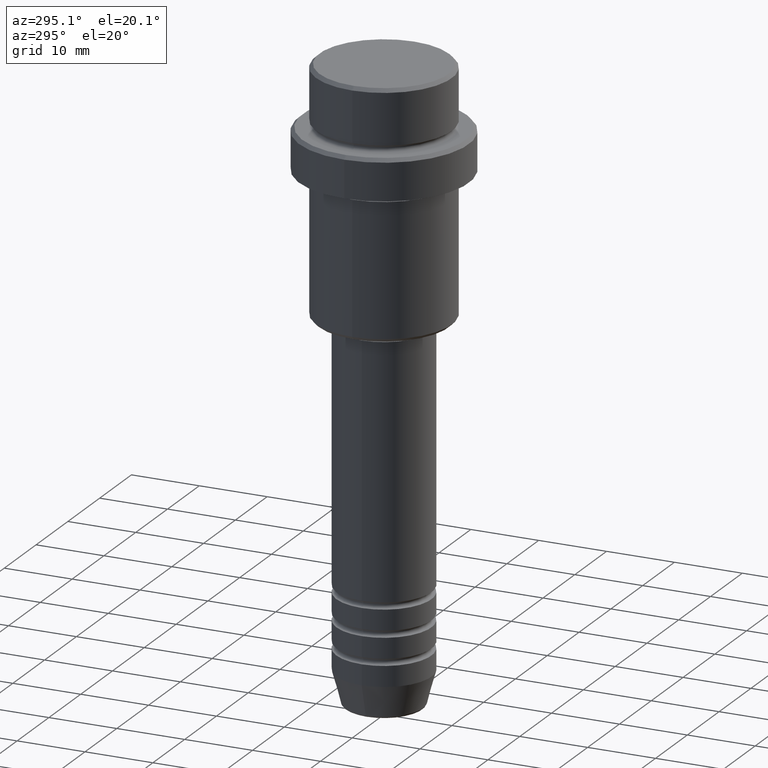
[diagram: clean part render]
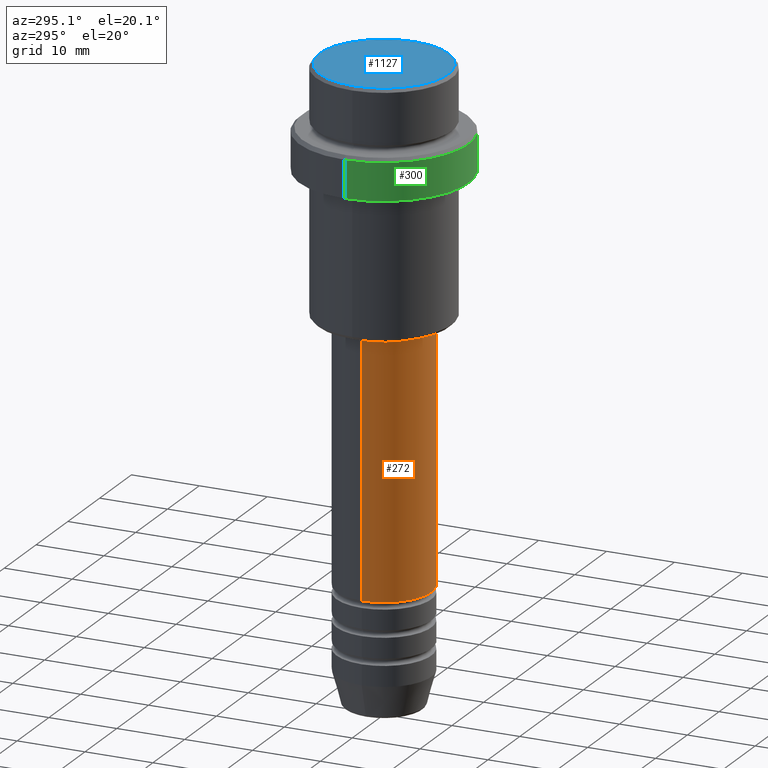
[diagram: same view with three faces highlighted in distinct colors, each labeled with its STEP entity id]
A machine part, auxiliary view with three faces highlighted in distinct colors.
Their STEP definitions:

[orange] entity #272 — the highlighted cylindrical surface (partial cylindrical patch) has radius 7 mm, axis along (-0, -0, 1).
#78 = EDGE_CURVE ( 'NONE', #1156, #888, #553, .T. ) ;
#90 = VERTEX_POINT ( 'NONE', #339 ) ;
#91 = CYLINDRICAL_SURFACE ( 'NONE', #655, 7.000000000000000000 ) ;
#164 = EDGE_CURVE ( 'NONE', #90, #1156, #1017, .T. ) ;
#222 = VECTOR ( 'NONE', #1101, 1000.000000000000000 ) ;
#272 = ADVANCED_FACE ( 'NONE', ( #1072 ), #91, .T. ) ;
#313 = CIRCLE ( 'NONE', #390, 7.000000000000000000 ) ;
#319 = ORIENTED_EDGE ( 'NONE', *, *, #78, .F. ) ;
#321 = EDGE_CURVE ( 'NONE', #372, #888, #885, .T. ) ;
#339 = CARTESIAN_POINT ( 'NONE',  ( -7.000000000000000000, 8.572527594031473190E-16, -73.99999999999987210 ) ) ;
#345 = ORIENTED_EDGE ( 'NONE', *, *, #1274, .T. ) ;
#358 = DIRECTION ( 'NONE',  ( -0.000000000000000000, -0.000000000000000000, 1.000000000000000000 ) ) ;
#372 = VERTEX_POINT ( 'NONE', #842 ) ;
#390 = AXIS2_PLACEMENT_3D ( 'NONE', #397, #540, #831 ) ;
#397 = CARTESIAN_POINT ( 'NONE',  ( 0.000000000000000000, 0.000000000000000000, -73.99999999999987210 ) ) ;
#416 = DIRECTION ( 'NONE',  ( 1.000000000000000000, 0.000000000000000000, 0.000000000000000000 ) ) ;
#540 = DIRECTION ( 'NONE',  ( -0.000000000000000000, -0.000000000000000000, 1.000000000000000000 ) ) ;
#553 = CIRCLE ( 'NONE', #1168, 7.000000000000000000 ) ;
#655 = AXIS2_PLACEMENT_3D ( 'NONE', #1397, #845, #857 ) ;
#726 = VECTOR ( 'NONE', #358, 1000.000000000000000 ) ;
#781 = CARTESIAN_POINT ( 'NONE',  ( 7.000000000000000000, 0.000000000000000000, 0.000000000000000000 ) ) ;
#784 = EDGE_LOOP ( 'NONE', ( #1327, #345, #1302, #319 ) ) ;
#831 = DIRECTION ( 'NONE',  ( 1.000000000000000000, 0.000000000000000000, 0.000000000000000000 ) ) ;
#842 = CARTESIAN_POINT ( 'NONE',  ( 7.000000000000000000, 0.000000000000000000, -73.99999999999987210 ) ) ;
#845 = DIRECTION ( 'NONE',  ( -0.000000000000000000, -0.000000000000000000, 1.000000000000000000 ) ) ;
#847 = CARTESIAN_POINT ( 'NONE',  ( 0.000000000000000000, 0.000000000000000000, -37.00000000000000000 ) ) ;
#857 = DIRECTION ( 'NONE',  ( 1.000000000000000000, 0.000000000000000000, 0.000000000000000000 ) ) ;
#878 = CARTESIAN_POINT ( 'NONE',  ( -7.000000000000000000, 8.572527594031473190E-16, -37.00000000000000000 ) ) ;
#885 = LINE ( 'NONE', #781, #222 ) ;
#888 = VERTEX_POINT ( 'NONE', #1163 ) ;
#1017 = LINE ( 'NONE', #1332, #726 ) ;
#1064 = DIRECTION ( 'NONE',  ( -0.000000000000000000, -0.000000000000000000, 1.000000000000000000 ) ) ;
#1072 = FACE_OUTER_BOUND ( 'NONE', #784, .T. ) ;
#1101 = DIRECTION ( 'NONE',  ( -0.000000000000000000, -0.000000000000000000, 1.000000000000000000 ) ) ;
#1156 = VERTEX_POINT ( 'NONE', #878 ) ;
#1163 = CARTESIAN_POINT ( 'NONE',  ( 7.000000000000000000, 0.000000000000000000, -37.00000000000000000 ) ) ;
#1168 = AXIS2_PLACEMENT_3D ( 'NONE', #847, #1064, #416 ) ;
#1274 = EDGE_CURVE ( 'NONE', #90, #372, #313, .T. ) ;
#1302 = ORIENTED_EDGE ( 'NONE', *, *, #321, .T. ) ;
#1327 = ORIENTED_EDGE ( 'NONE', *, *, #164, .F. ) ;
#1332 = CARTESIAN_POINT ( 'NONE',  ( -7.000000000000000000, 8.572527594031473190E-16, 0.000000000000000000 ) ) ;
#1397 = CARTESIAN_POINT ( 'NONE',  ( 0.000000000000000000, 0.000000000000000000, 0.000000000000000000 ) ) ;

[blue] entity #1127 — the highlighted planar face has unit normal (0, -0, 1).
#28 = EDGE_CURVE ( 'NONE', #855, #813, #931, .T. ) ;
#37 = CARTESIAN_POINT ( 'NONE',  ( 0.000000000000000000, 0.000000000000000000, 0.000000000000000000 ) ) ;
#113 = DIRECTION ( 'NONE',  ( -0.000000000000000000, -0.000000000000000000, 1.000000000000000000 ) ) ;
#151 = DIRECTION ( 'NONE',  ( -0.000000000000000000, -0.000000000000000000, 1.000000000000000000 ) ) ;
#184 = CARTESIAN_POINT ( 'NONE',  ( 9.499999999999994671, 1.194030629168669075E-15, 0.000000000000000000 ) ) ;
#366 = CARTESIAN_POINT ( 'NONE',  ( 0.000000000000000000, 0.000000000000000000, 0.000000000000000000 ) ) ;
#403 = ORIENTED_EDGE ( 'NONE', *, *, #1129, .T. ) ;
#472 = DIRECTION ( 'NONE',  ( 0.000000000000000000, -0.000000000000000000, 1.000000000000000000 ) ) ;
#494 = PLANE ( 'NONE',  #1032 ) ;
#550 = EDGE_LOOP ( 'NONE', ( #403, #594 ) ) ;
#590 = DIRECTION ( 'NONE',  ( 1.000000000000000000, 0.000000000000000000, 0.000000000000000000 ) ) ;
#594 = ORIENTED_EDGE ( 'NONE', *, *, #28, .T. ) ;
#604 = FACE_OUTER_BOUND ( 'NONE', #550, .T. ) ;
#813 = VERTEX_POINT ( 'NONE', #966 ) ;
#855 = VERTEX_POINT ( 'NONE', #184 ) ;
#909 = DIRECTION ( 'NONE',  ( 1.000000000000000000, 0.000000000000000000, 0.000000000000000000 ) ) ;
#914 = DIRECTION ( 'NONE',  ( 1.000000000000000000, 0.000000000000000000, 0.000000000000000000 ) ) ;
#931 = CIRCLE ( 'NONE', #1063, 9.499999999999994671 ) ;
#940 = CIRCLE ( 'NONE', #1069, 9.499999999999994671 ) ;
#966 = CARTESIAN_POINT ( 'NONE',  ( -9.499999999999994671, 0.000000000000000000, 0.000000000000000000 ) ) ;
#1032 = AXIS2_PLACEMENT_3D ( 'NONE', #37, #472, #914 ) ;
#1063 = AXIS2_PLACEMENT_3D ( 'NONE', #1093, #113, #909 ) ;
#1069 = AXIS2_PLACEMENT_3D ( 'NONE', #366, #151, #590 ) ;
#1093 = CARTESIAN_POINT ( 'NONE',  ( 0.000000000000000000, 0.000000000000000000, 0.000000000000000000 ) ) ;
#1127 = ADVANCED_FACE ( 'NONE', ( #604 ), #494, .T. ) ;
#1129 = EDGE_CURVE ( 'NONE', #813, #855, #940, .T. ) ;

[green] entity #300 — the highlighted cylindrical surface (partial cylindrical patch) has radius 12.5 mm, axis along (-0, -0, 1).
#15 = DIRECTION ( 'NONE',  ( 1.000000000000000000, 0.000000000000000000, 0.000000000000000000 ) ) ;
#27 = CARTESIAN_POINT ( 'NONE',  ( 12.50000000000000000, 0.000000000000000000, -9.500000000000007105 ) ) ;
#59 = VERTEX_POINT ( 'NONE', #969 ) ;
#121 = EDGE_CURVE ( 'NONE', #953, #308, #611, .T. ) ;
#145 = DIRECTION ( 'NONE',  ( 1.000000000000000000, 0.000000000000000000, 0.000000000000000000 ) ) ;
#180 = ORIENTED_EDGE ( 'NONE', *, *, #929, .F. ) ;
#233 = CARTESIAN_POINT ( 'NONE',  ( -12.50000000000000000, 1.530808498934191521E-15, 0.000000000000000000 ) ) ;
#236 = DIRECTION ( 'NONE',  ( 0.000000000000000000, 0.000000000000000000, -1.000000000000000000 ) ) ;
#240 = DIRECTION ( 'NONE',  ( -0.000000000000000000, -0.000000000000000000, 1.000000000000000000 ) ) ;
#284 = CARTESIAN_POINT ( 'NONE',  ( 12.50000000000000000, 0.000000000000000000, 0.000000000000000000 ) ) ;
#300 = ADVANCED_FACE ( 'NONE', ( #1096 ), #437, .T. ) ;
#308 = VERTEX_POINT ( 'NONE', #1388 ) ;
#323 = CARTESIAN_POINT ( 'NONE',  ( 0.000000000000000000, 0.000000000000000000, 0.000000000000000000 ) ) ;
#357 = CARTESIAN_POINT ( 'NONE',  ( 12.50000000000000000, 0.000000000000000000, -15.00000000000000178 ) ) ;
#380 = DIRECTION ( 'NONE',  ( -0.000000000000000000, -0.000000000000000000, 1.000000000000000000 ) ) ;
#437 = CYLINDRICAL_SURFACE ( 'NONE', #955, 12.50000000000000000 ) ;
#450 = DIRECTION ( 'NONE',  ( -0.000000000000000000, -0.000000000000000000, 1.000000000000000000 ) ) ;
#455 = ORIENTED_EDGE ( 'NONE', *, *, #1048, .T. ) ;
#458 = DIRECTION ( 'NONE',  ( 1.000000000000000000, 0.000000000000000000, 0.000000000000000000 ) ) ;
#499 = EDGE_LOOP ( 'NONE', ( #180, #1393, #455, #1187 ) ) ;
#507 = VERTEX_POINT ( 'NONE', #357 ) ;
#564 = VECTOR ( 'NONE', #240, 1000.000000000000000 ) ;
#611 = CIRCLE ( 'NONE', #1269, 12.50000000000000000 ) ;
#773 = DIRECTION ( 'NONE',  ( -0.000000000000000000, -0.000000000000000000, 1.000000000000000000 ) ) ;
#929 = EDGE_CURVE ( 'NONE', #59, #308, #1083, .T. ) ;
#953 = VERTEX_POINT ( 'NONE', #27 ) ;
#955 = AXIS2_PLACEMENT_3D ( 'NONE', #323, #773, #15 ) ;
#969 = CARTESIAN_POINT ( 'NONE',  ( -12.50000000000000000, 1.530808498934191521E-15, -15.00000000000000178 ) ) ;
#994 = CARTESIAN_POINT ( 'NONE',  ( 0.000000000000000000, 0.000000000000000000, -15.00000000000000178 ) ) ;
#997 = EDGE_CURVE ( 'NONE', #59, #507, #1386, .T. ) ;
#1048 = EDGE_CURVE ( 'NONE', #507, #953, #1244, .T. ) ;
#1083 = LINE ( 'NONE', #233, #564 ) ;
#1096 = FACE_OUTER_BOUND ( 'NONE', #499, .T. ) ;
#1187 = ORIENTED_EDGE ( 'NONE', *, *, #121, .T. ) ;
#1239 = CARTESIAN_POINT ( 'NONE',  ( 0.000000000000000000, 0.000000000000000000, -9.500000000000007105 ) ) ;
#1244 = LINE ( 'NONE', #284, #1365 ) ;
#1269 = AXIS2_PLACEMENT_3D ( 'NONE', #1239, #236, #145 ) ;
#1365 = VECTOR ( 'NONE', #380, 1000.000000000000000 ) ;
#1386 = CIRCLE ( 'NONE', #1406, 12.50000000000000000 ) ;
#1388 = CARTESIAN_POINT ( 'NONE',  ( -12.50000000000000000, 1.530808498934191521E-15, -9.500000000000007105 ) ) ;
#1393 = ORIENTED_EDGE ( 'NONE', *, *, #997, .T. ) ;
#1406 = AXIS2_PLACEMENT_3D ( 'NONE', #994, #450, #458 ) ;